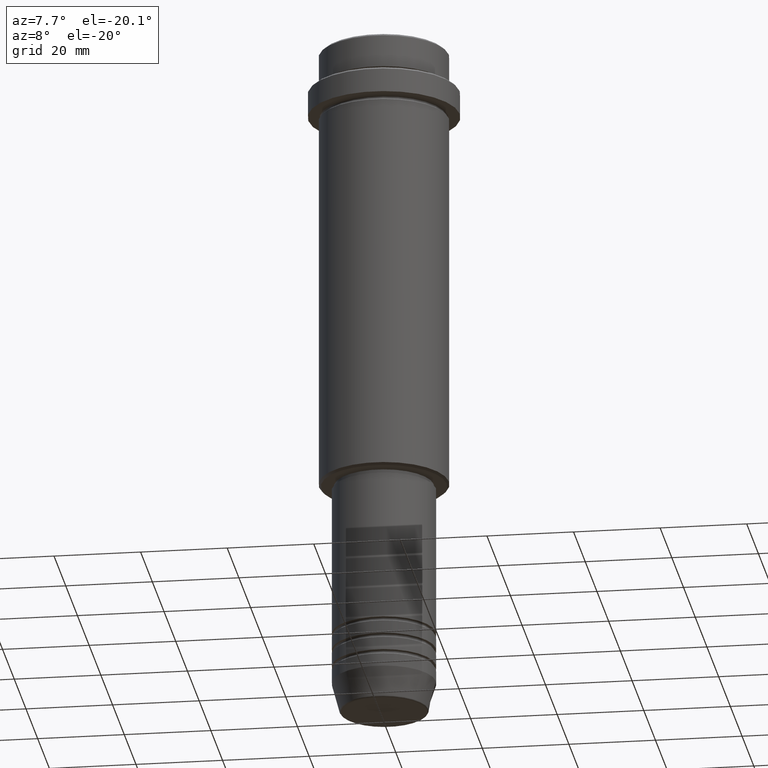
[diagram: clean part render]
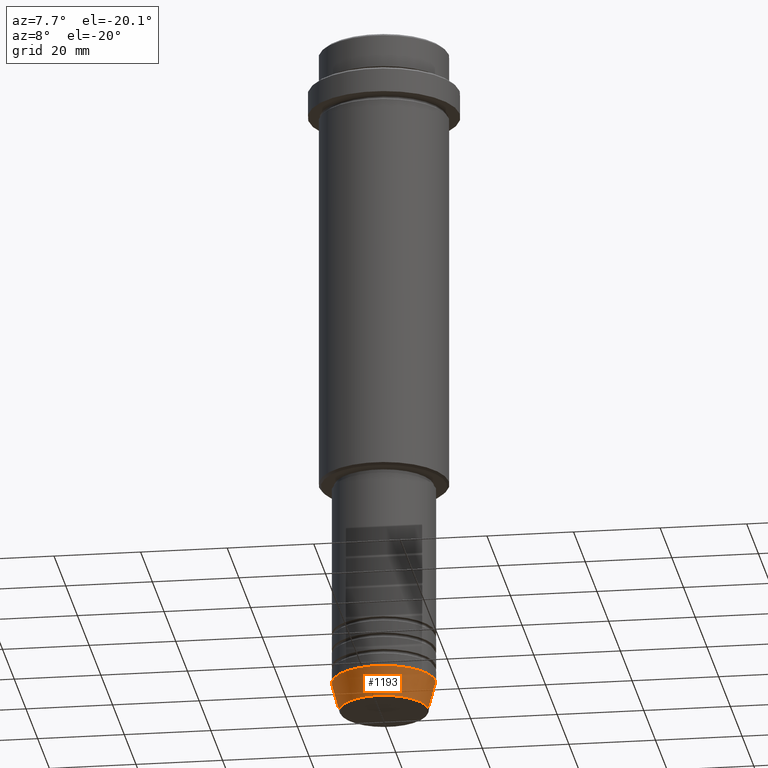
[diagram: same view with one face highlighted and labeled with its STEP entity id]
A machine part, auxiliary view. The second image highlights one B-rep face of the part: STEP entity #1193.
In plain terms, the highlighted conical surface has half-angle 15 deg.
Its self-contained STEP definition (entity closure, byte-faithful):
#5 = EDGE_CURVE ( 'NONE', #421, #160, #592, .T. ) ;
#31 = CARTESIAN_POINT ( 'NONE',  ( 12.00000000000000000, 0.000000000000000000, -153.0000000000000000 ) ) ;
#46 = ORIENTED_EDGE ( 'NONE', *, *, #358, .T. ) ;
#90 = AXIS2_PLACEMENT_3D ( 'NONE', #1166, #164, #477 ) ;
#93 = CIRCLE ( 'NONE', #1371, 12.00000000000000000 ) ;
#115 = EDGE_CURVE ( 'NONE', #421, #480, #1247, .T. ) ;
#120 = CARTESIAN_POINT ( 'NONE',  ( 0.000000000000000000, 0.000000000000000000, -153.0000000000000000 ) ) ;
#134 = LINE ( 'NONE', #31, #1290 ) ;
#160 = VERTEX_POINT ( 'NONE', #830 ) ;
#164 = DIRECTION ( 'NONE',  ( -0.000000000000000000, -0.000000000000000000, 1.000000000000000000 ) ) ;
#189 = CARTESIAN_POINT ( 'NONE',  ( 0.000000000000000000, 0.000000000000000000, -159.6294095225512422 ) ) ;
#267 = ORIENTED_EDGE ( 'NONE', *, *, #1415, .F. ) ;
#333 = ORIENTED_EDGE ( 'NONE', *, *, #5, .F. ) ;
#352 = DIRECTION ( 'NONE',  ( -0.2588190451025213501, 3.169619151431772337E-17, 0.9659258262890680902 ) ) ;
#358 = EDGE_CURVE ( 'NONE', #480, #1232, #134, .T. ) ;
#361 = CONICAL_SURFACE ( 'NONE', #90, 12.00000000000000000, 0.2617993877991500740 ) ;
#371 = DIRECTION ( 'NONE',  ( -0.000000000000000000, -0.000000000000000000, 1.000000000000000000 ) ) ;
#421 = VERTEX_POINT ( 'NONE', #1013 ) ;
#477 = DIRECTION ( 'NONE',  ( 1.000000000000000000, 0.000000000000000000, 0.000000000000000000 ) ) ;
#480 = VERTEX_POINT ( 'NONE', #1096 ) ;
#483 = CARTESIAN_POINT ( 'NONE',  ( 12.00000000000000000, 0.000000000000000000, -153.0000000000000000 ) ) ;
#592 = LINE ( 'NONE', #1015, #1384 ) ;
#681 = DIRECTION ( 'NONE',  ( -0.000000000000000000, -0.000000000000000000, 1.000000000000000000 ) ) ;
#790 = EDGE_LOOP ( 'NONE', ( #333, #1025, #46, #267 ) ) ;
#830 = CARTESIAN_POINT ( 'NONE',  ( -12.00000000000000000, 1.469576158976823947E-15, -153.0000000000000000 ) ) ;
#1013 = CARTESIAN_POINT ( 'NONE',  ( -10.22365507213719127, 1.360806402472382744E-15, -159.6294095225512422 ) ) ;
#1014 = DIRECTION ( 'NONE',  ( 1.000000000000000000, 0.000000000000000000, 0.000000000000000000 ) ) ;
#1015 = CARTESIAN_POINT ( 'NONE',  ( -12.00000000000000000, 1.469576158976823947E-15, -153.0000000000000000 ) ) ;
#1025 = ORIENTED_EDGE ( 'NONE', *, *, #115, .T. ) ;
#1096 = CARTESIAN_POINT ( 'NONE',  ( 10.22365507213719127, 0.000000000000000000, -159.6294095225512422 ) ) ;
#1150 = FACE_OUTER_BOUND ( 'NONE', #790, .T. ) ;
#1156 = DIRECTION ( 'NONE',  ( 1.000000000000000000, 0.000000000000000000, 0.000000000000000000 ) ) ;
#1166 = CARTESIAN_POINT ( 'NONE',  ( 0.000000000000000000, 0.000000000000000000, -153.0000000000000000 ) ) ;
#1193 = ADVANCED_FACE ( 'NONE', ( #1150 ), #361, .T. ) ;
#1232 = VERTEX_POINT ( 'NONE', #483 ) ;
#1247 = CIRCLE ( 'NONE', #1359, 10.22365507213719127 ) ;
#1290 = VECTOR ( 'NONE', #1310, 1000.000000000000000 ) ;
#1310 = DIRECTION ( 'NONE',  ( 0.2588190451025213501, 0.000000000000000000, 0.9659258262890680902 ) ) ;
#1359 = AXIS2_PLACEMENT_3D ( 'NONE', #189, #371, #1156 ) ;
#1371 = AXIS2_PLACEMENT_3D ( 'NONE', #120, #681, #1014 ) ;
#1384 = VECTOR ( 'NONE', #352, 1000.000000000000000 ) ;
#1415 = EDGE_CURVE ( 'NONE', #160, #1232, #93, .T. ) ;